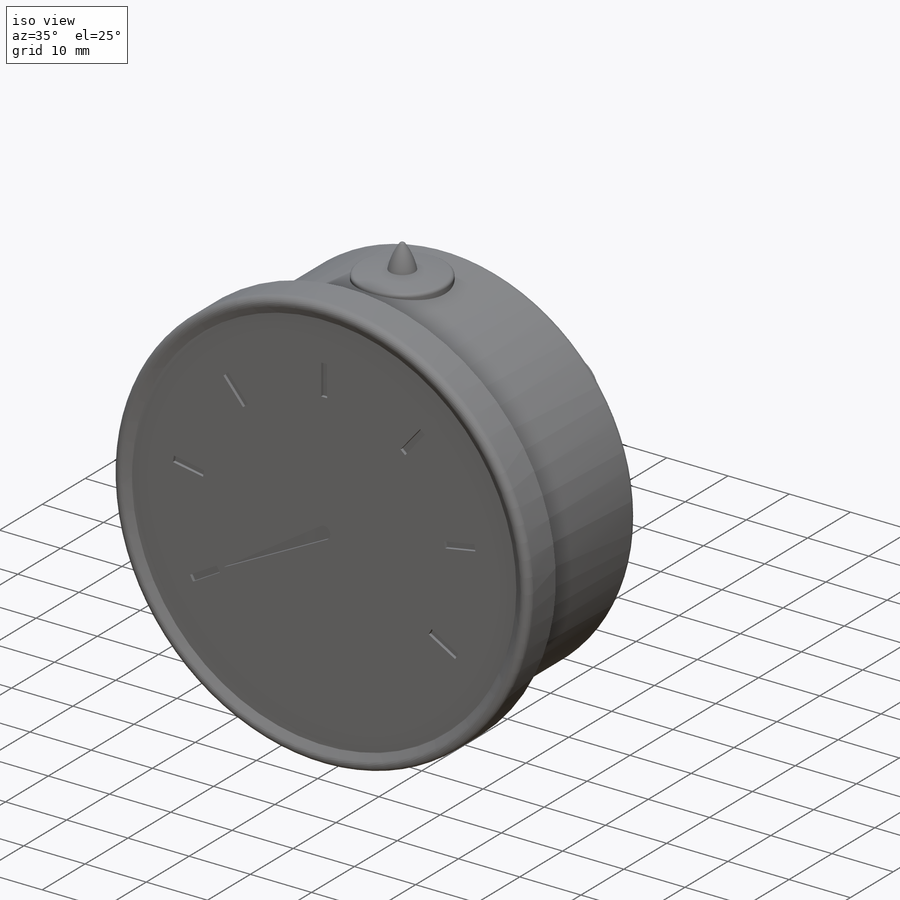
[diagram: iso view]
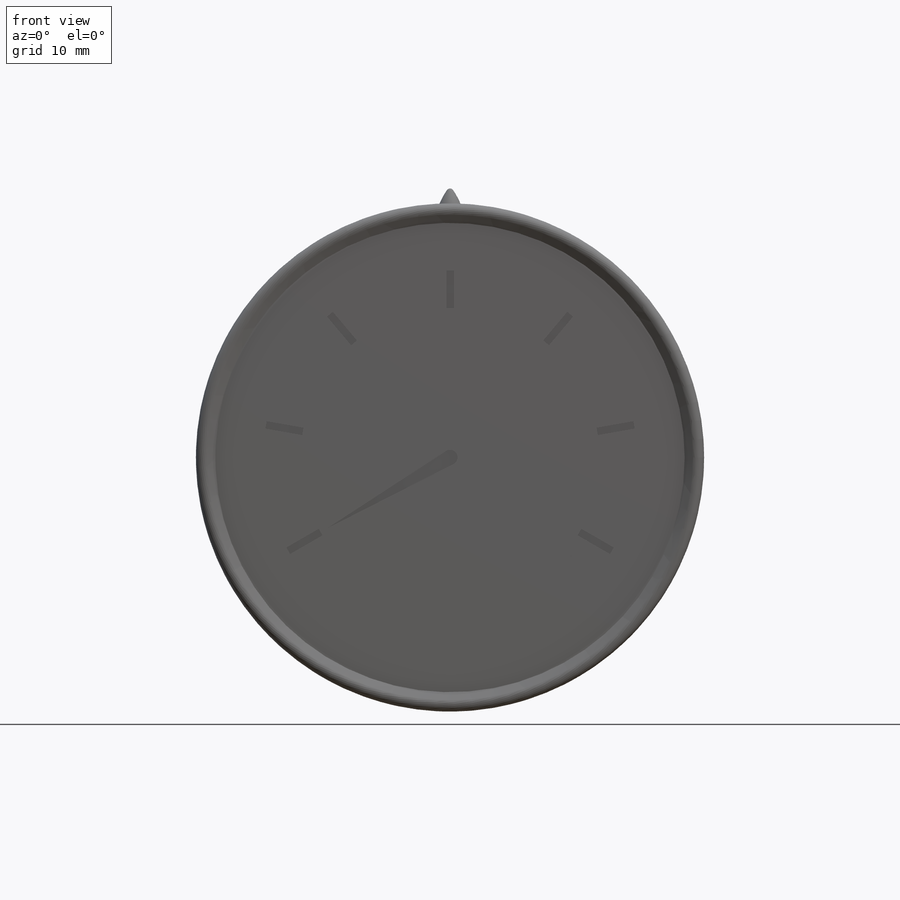
[diagram: front view]
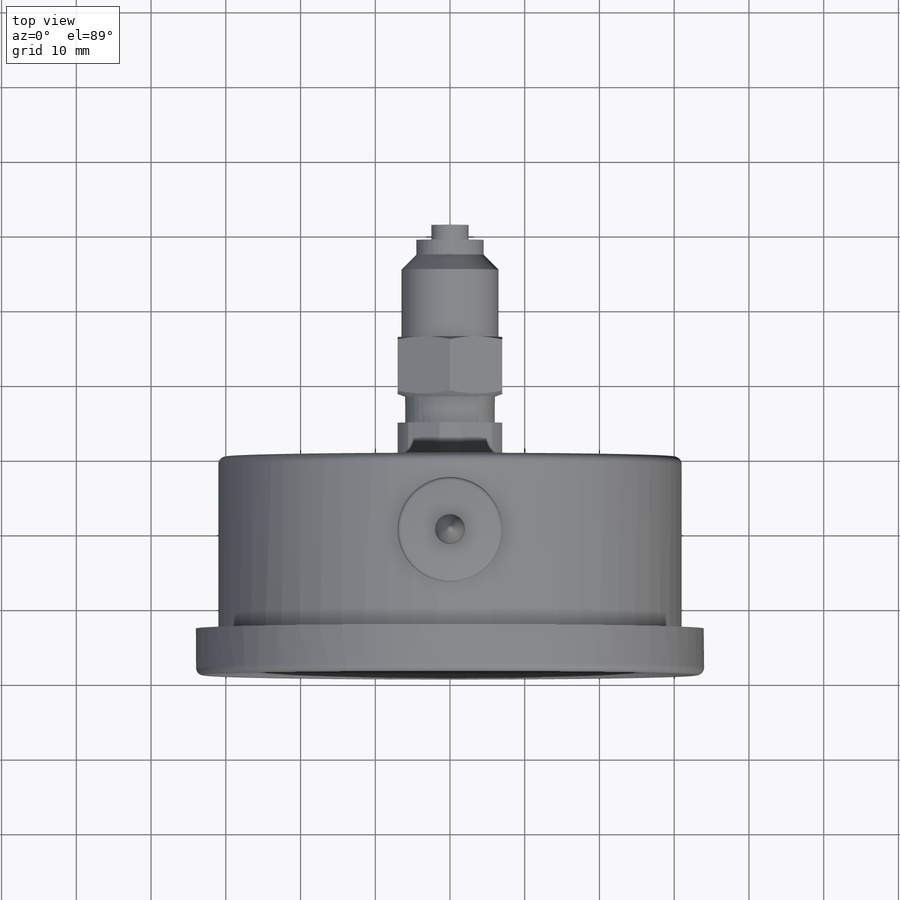
[diagram: top view]
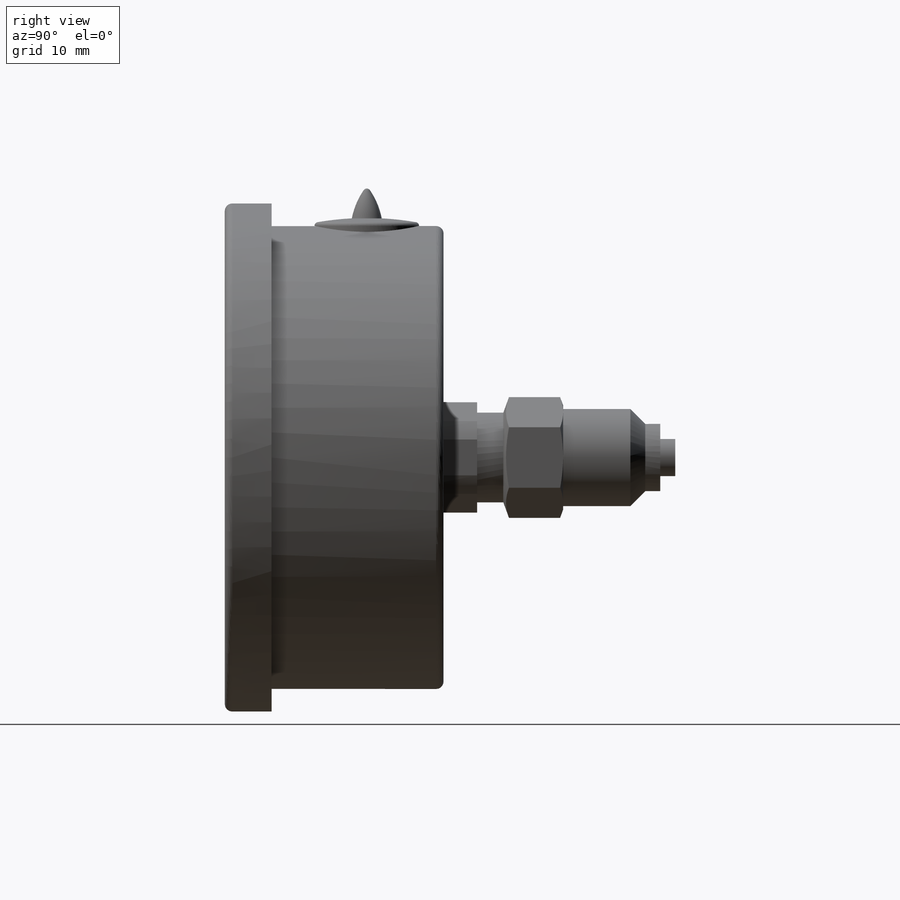
[diagram: right view]
SOLIDWORKS PART (.sldprt)
format: sldprt  version: not decoded by parser v0  size: 523,776 bytes
history: native  units: mm
features: sketch x6, plane x3, revolve x2, cut_extrude x2, material x1, fillet x1, pattern_circular x1, extrude x1, cut_revolve x1 + 1 further entry (+8 scaffold rows collapsed)
feature tree (27):
  scaffold x8  (default folders/planes/origin — collapsed)
  material  "Materiál <není určen>"
  "Těla ploch"
  plane  "Horní"
  plane  "Přední"
  plane  "Pravá"
  sketch  "Skica1"  dims[c1.D1=5.8mm c1.D2=68.0mm c1.D3=80.0mm c1.D4=~16.036582mm c1.D5=181.0mm c1.D6=~15.065686mm c2.D6=45.0deg c2.D7=20.0mm c2.D8=1.5mm c2.D9=1.5mm c3.D7=~2.12132mm c4.D7=30.0deg c4.D9=30.0mm c4.D10=20.8mm c4.D11=33.0mm c4.D4=99.0mm c4.D12=8.5mm c4.D3=2.7mm c4.D5=33.0mm c4.D6=16.2mm c5.D11=2.3mm c6.D11=45.0deg c6.D13=2.7mm c6.D1=7.0mm c6.D3=62.0mm]
  revolve  "Rotovat1"  Angle=360deg
  fillet  "Zaoblit1"  Radius=1mm
  sketch  "Skica2"  dims[c1.D1=~17.612399mm c2.D1=120.0deg c2.D2=1.0mm c2.D3=5.0mm c2.D4=~45.002778mm c3.D1=25.0mm c3.D5=~40.003125mm]
  cut_extrude  "Odebrat vysunutím1"  Depth=0.5mm
  pattern_circular  "Kruhové pole1"  Count=9 Angle=360deg
  sketch  "Skica3"  dims[D1=1.0mm D2=19.0mm]
  cut_extrude  "Odebrat vysunutím2"  Depth=0.5mm
  sketch  "Skica4"  dims[D1=14.0mm]
  extrude  "Přidat vysunutím1"  Depth=31mm
  sketch  "Skica6"  dims[c1.D1=51.0mm c1.D2=14.0mm c1.D3=20.0mm c1.D4=11.5mm c1.D5=6.0mm c1.D6=~2.701706mm c2.D6=20.0deg c2.D7=14.0mm c2.D8=50.0mm c2.D1=5.0mm c2.D2=2.0mm c2.D3=9.0mm c2.D4=13.0mm c2.D5=4.0mm c3.D6=2.0mm c4.D6=45.0deg c4.D7=15.0mm c4.D8=~0.881494mm c5.D8=20.0deg c5.D9=~3.002429mm c6.D9=20.0deg c6.D10=8.0mm c6.D11=14.8mm c6.D12=4.5mm c6.D13=12.0mm]
  cut_revolve  "Odebrat rotací1"  Angle=360deg
  sketch  "Skica7"  dims[c1.D5=0.5mm c1.D6=0.5mm c1.D7=10.0mm c1.D10=~14.188883mm c1.D1=32.0mm c1.D2=5.0mm c1.D3=14.0mm c1.D4=5.0mm c1.D8=4.0mm c1.D9=1.0mm c2.D1=19.0mm c2.D3=4.0mm c2.D8=14.0mm]
  revolve  "Rotovat2"  Angle=360deg
decode coverage: 14 of 14 modeling features carry decoded parameters; 1 rows unclassified (native names shown)
note: ~ marks probable driven/reference dimensions
note: suppression state not decoded; provenance and decode notes live in map.json
